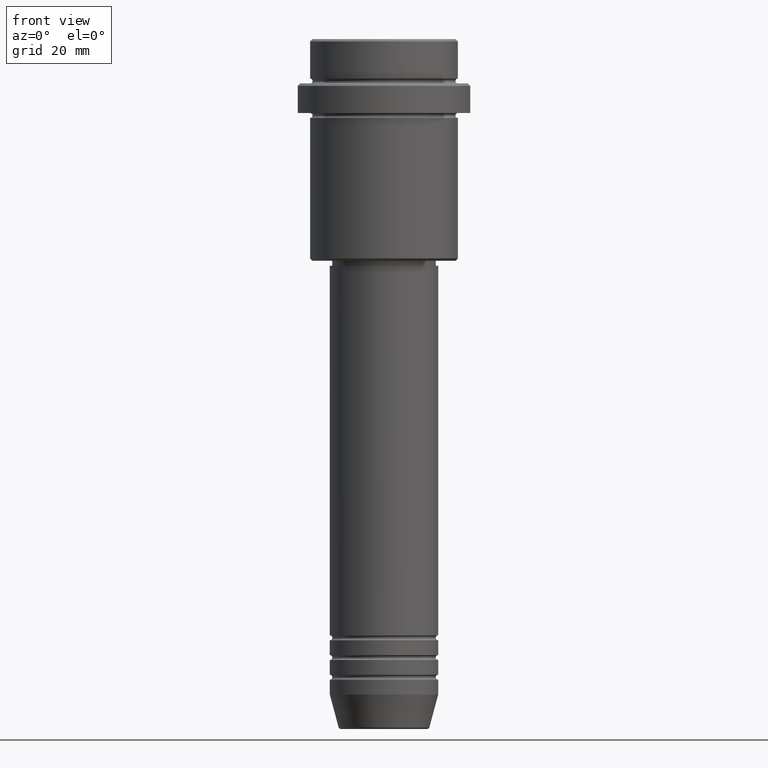
[diagram: clean part render]
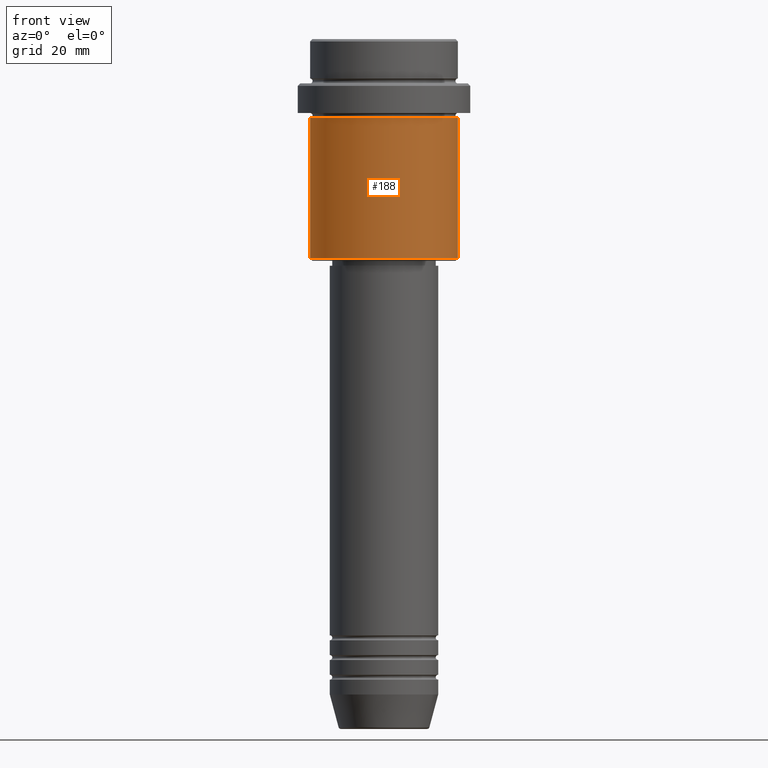
[diagram: same view with one face highlighted and labeled with its STEP entity id]
A machine part, front view. The second image highlights one B-rep face of the part: STEP entity #188.
In plain terms, the highlighted cylindrical surface (partial cylindrical patch) has radius 15 mm, axis along (-0, -0, 1).
Its self-contained STEP definition (entity closure, byte-faithful):
#21 = CARTESIAN_POINT ( 'NONE',  ( 15.00000000000000178, 0.000000000000000000, -16.00000000000000000 ) ) ;
#22 = AXIS2_PLACEMENT_3D ( 'NONE', #864, #544, #318 ) ;
#119 = ORIENTED_EDGE ( 'NONE', *, *, #203, .F. ) ;
#185 = CIRCLE ( 'NONE', #462, 15.00000000000000000 ) ;
#188 = ADVANCED_FACE ( 'NONE', ( #1307 ), #967, .T. ) ;
#203 = EDGE_CURVE ( 'NONE', #801, #1000, #522, .T. ) ;
#318 = DIRECTION ( 'NONE',  ( 1.000000000000000000, 0.000000000000000000, 0.000000000000000000 ) ) ;
#340 = LINE ( 'NONE', #1123, #1110 ) ;
#390 = EDGE_CURVE ( 'NONE', #1325, #801, #986, .T. ) ;
#443 = CARTESIAN_POINT ( 'NONE',  ( -15.00000000000000355, 1.836970198721029983E-15, -16.00000000000000000 ) ) ;
#460 = ORIENTED_EDGE ( 'NONE', *, *, #945, .T. ) ;
#462 = AXIS2_PLACEMENT_3D ( 'NONE', #490, #928, #1039 ) ;
#490 = CARTESIAN_POINT ( 'NONE',  ( 0.000000000000000000, 0.000000000000000000, -44.50000000000001421 ) ) ;
#522 = CIRCLE ( 'NONE', #1336, 15.00000000000000178 ) ;
#544 = DIRECTION ( 'NONE',  ( -0.000000000000000000, -0.000000000000000000, 1.000000000000000000 ) ) ;
#686 = VERTEX_POINT ( 'NONE', #1187 ) ;
#731 = VECTOR ( 'NONE', #875, 1000.000000000000000 ) ;
#801 = VERTEX_POINT ( 'NONE', #443 ) ;
#812 = DIRECTION ( 'NONE',  ( -0.000000000000000000, -0.000000000000000000, 1.000000000000000000 ) ) ;
#864 = CARTESIAN_POINT ( 'NONE',  ( 0.000000000000000000, 0.000000000000000000, 0.000000000000000000 ) ) ;
#875 = DIRECTION ( 'NONE',  ( -0.000000000000000000, -0.000000000000000000, 1.000000000000000000 ) ) ;
#928 = DIRECTION ( 'NONE',  ( -0.000000000000000000, -0.000000000000000000, 1.000000000000000000 ) ) ;
#945 = EDGE_CURVE ( 'NONE', #686, #1000, #340, .T. ) ;
#967 = CYLINDRICAL_SURFACE ( 'NONE', #22, 15.00000000000000000 ) ;
#976 = DIRECTION ( 'NONE',  ( 1.000000000000000000, 0.000000000000000000, 0.000000000000000000 ) ) ;
#981 = CARTESIAN_POINT ( 'NONE',  ( -15.00000000000000000, 1.836970198721029589E-15, 0.000000000000000000 ) ) ;
#982 = DIRECTION ( 'NONE',  ( -0.000000000000000000, -0.000000000000000000, 1.000000000000000000 ) ) ;
#986 = LINE ( 'NONE', #981, #731 ) ;
#1000 = VERTEX_POINT ( 'NONE', #21 ) ;
#1009 = ORIENTED_EDGE ( 'NONE', *, *, #1032, .T. ) ;
#1028 = EDGE_LOOP ( 'NONE', ( #1060, #1009, #460, #119 ) ) ;
#1032 = EDGE_CURVE ( 'NONE', #1325, #686, #185, .T. ) ;
#1039 = DIRECTION ( 'NONE',  ( -1.000000000000000000, 0.000000000000000000, 0.000000000000000000 ) ) ;
#1060 = ORIENTED_EDGE ( 'NONE', *, *, #390, .F. ) ;
#1083 = CARTESIAN_POINT ( 'NONE',  ( -15.00000000000000000, 1.836970198721029589E-15, -44.50000000000001421 ) ) ;
#1110 = VECTOR ( 'NONE', #812, 1000.000000000000000 ) ;
#1123 = CARTESIAN_POINT ( 'NONE',  ( 15.00000000000000000, 0.000000000000000000, 0.000000000000000000 ) ) ;
#1187 = CARTESIAN_POINT ( 'NONE',  ( 15.00000000000000000, 0.000000000000000000, -44.50000000000001421 ) ) ;
#1300 = CARTESIAN_POINT ( 'NONE',  ( 0.000000000000000000, 0.000000000000000000, -16.00000000000000000 ) ) ;
#1307 = FACE_OUTER_BOUND ( 'NONE', #1028, .T. ) ;
#1325 = VERTEX_POINT ( 'NONE', #1083 ) ;
#1336 = AXIS2_PLACEMENT_3D ( 'NONE', #1300, #982, #976 ) ;